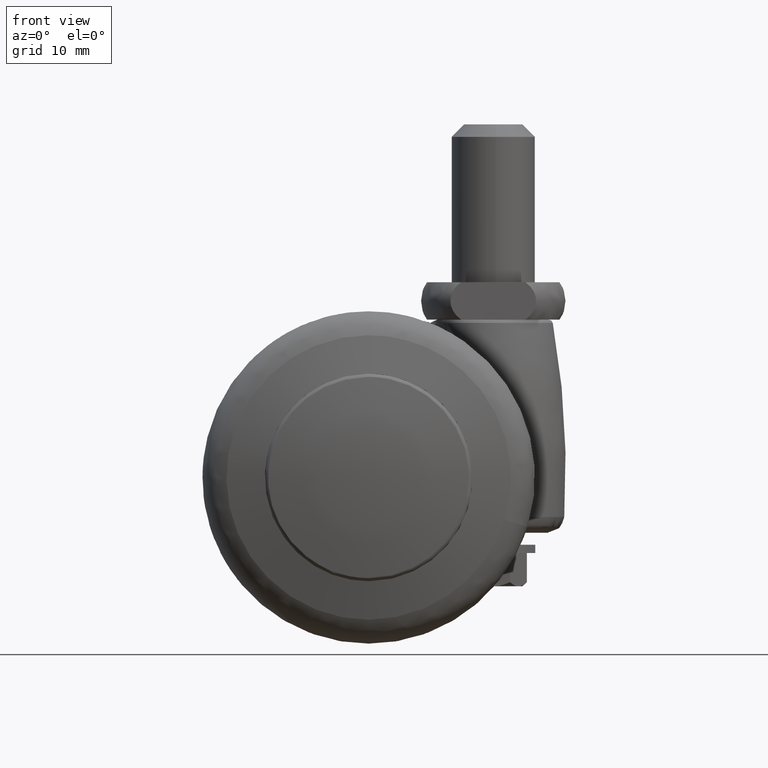
[diagram: clean part render]
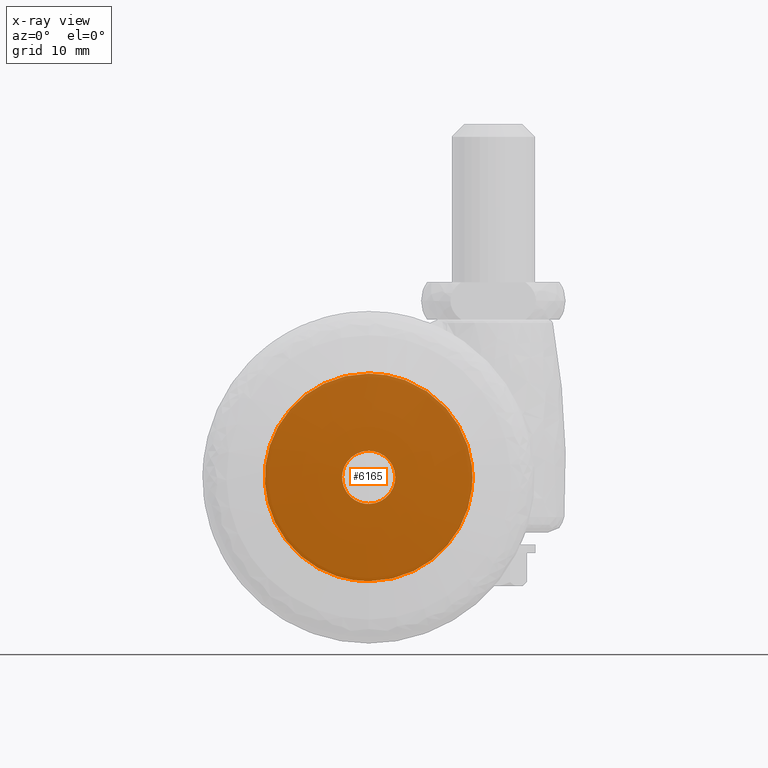
[diagram: x-ray — body ghosted, one internal face saturated and labeled with its STEP entity id]
A machine part, front view, then the same camera in x-ray: the body is ghosted and one INTERNAL B-rep face — a face not visible from any outside direction — is saturated and labeled: STEP entity #6165.
In plain terms, the highlighted face is a freeform B-spline surface patch.
Its self-contained STEP definition (entity closure, byte-faithful):
#3973=CARTESIAN_POINT('',(-3.175460595861651,18.0,-0.397235715632349));
#3974=VERTEX_POINT('',#3973);
#3975=CARTESIAN_POINT('',(0.0,18.0,-3.200210338344024));
#3976=VERTEX_POINT('',#3975);
#3977=CARTESIAN_POINT('',(-3.175460595861651,17.999999999999996,-0.397235715632349));
#3978=CARTESIAN_POINT('',(-2.824821185665963,18.000000000000011,-3.200210338344024));
#3979=CARTESIAN_POINT('',(0.0,18.0,-3.200210338344024));
#3987=(BOUNDED_CURVE()B_SPLINE_CURVE(2,(#3977,#3978,#3979),.UNSPECIFIED.,.F.,.U.)B_SPLINE_CURVE_WITH_KNOTS((3,3),(0.771473928981163,1.0),.UNSPECIFIED.)CURVE()GEOMETRIC_REPRESENTATION_ITEM()RATIONAL_B_SPLINE_CURVE((0.954005430254417,0.732265053906005,1.0))REPRESENTATION_ITEM(''));
#3988=EDGE_CURVE('',#3974,#3976,#3987,.T.);
#3990=CARTESIAN_POINT('',(3.200088484138599,18.0,0.027926749318558));
#3991=VERTEX_POINT('',#3990);
#3992=CARTESIAN_POINT('',(0.0,18.0,-3.200210338344024));
#3993=CARTESIAN_POINT('',(3.200210338344026,18.000000000000007,-3.200210338344024));
#3994=CARTESIAN_POINT('',(3.200210338344026,18.0,1.673897E-015));
#3995=CARTESIAN_POINT('',(3.200210338344026,17.999999999999996,0.013963640604977));
#3996=CARTESIAN_POINT('',(3.200088484138600,18.0,0.027926749318558));
#4004=(BOUNDED_CURVE()B_SPLINE_CURVE(2,(#3992,#3993,#3994,#3995,#3996),.UNSPECIFIED.,.F.,.U.)B_SPLINE_CURVE_WITH_KNOTS((3,2,3),(0.0,0.250000000000000,0.251539894356865),.UNSPECIFIED.)CURVE()GEOMETRIC_REPRESENTATION_ITEM()RATIONAL_B_SPLINE_CURVE((1.0,0.707106781186548,1.0,0.998195901540741,0.996414028049775))REPRESENTATION_ITEM(''));
#4005=EDGE_CURVE('',#3976,#3991,#4004,.T.);
#4076=CARTESIAN_POINT('',(0.0,18.0,3.200210338344027));
#4077=VERTEX_POINT('',#4076);
#4078=CARTESIAN_POINT('',(0.0,18.0,3.200210338344027));
#4079=CARTESIAN_POINT('',(-3.200210338344026,18.000000000000007,3.200210338344028));
#4080=CARTESIAN_POINT('',(-3.200210338344026,18.0,1.673897E-015));
#4081=CARTESIAN_POINT('',(-3.200210338344026,18.0,-0.199388873322108));
#4082=CARTESIAN_POINT('',(-3.175460595861651,18.000000000000004,-0.397235715632349));
#4090=(BOUNDED_CURVE()B_SPLINE_CURVE(2,(#4078,#4079,#4080,#4081,#4082),.UNSPECIFIED.,.F.,.U.)B_SPLINE_CURVE_WITH_KNOTS((3,2,3),(0.500000000000000,0.750000000000000,0.771473928981163),.UNSPECIFIED.)CURVE()GEOMETRIC_REPRESENTATION_ITEM()RATIONAL_B_SPLINE_CURVE((1.0,0.707106781186548,1.0,0.974841727280543,0.954005430254416))REPRESENTATION_ITEM(''));
#4091=EDGE_CURVE('',#4077,#3974,#4090,.T.);
#4125=CARTESIAN_POINT('',(3.200088484138600,18.000000000000004,0.027926749318558));
#4126=CARTESIAN_POINT('',(3.172404384268336,18.000000000000007,3.200210338344027));
#4127=CARTESIAN_POINT('',(0.0,18.0,3.200210338344027));
#4135=(BOUNDED_CURVE()B_SPLINE_CURVE(2,(#4125,#4126,#4127),.UNSPECIFIED.,.F.,.U.)B_SPLINE_CURVE_WITH_KNOTS((3,3),(0.251539894356865,0.500000000000000),.UNSPECIFIED.)CURVE()GEOMETRIC_REPRESENTATION_ITEM()RATIONAL_B_SPLINE_CURVE((0.996414028049774,0.708910879645807,1.0))REPRESENTATION_ITEM(''));
#4136=EDGE_CURVE('',#3991,#4077,#4135,.T.);
#4248=CARTESIAN_POINT('',(12.419649086377900,18.0,1.415032356934192));
#4249=VERTEX_POINT('',#4248);
#4255=CARTESIAN_POINT('',(0.0,18.0,-12.500000000000000));
#4256=VERTEX_POINT('',#4255);
#4257=CARTESIAN_POINT('',(0.0,18.0,-12.500000000000000));
#4258=CARTESIAN_POINT('',(12.499999999999998,18.000000000000007,-12.499999999999998));
#4259=CARTESIAN_POINT('',(12.500000000000000,18.0,1.673897E-015));
#4260=CARTESIAN_POINT('',(12.500000000000005,18.000000000000004,0.709797493550908));
#4261=CARTESIAN_POINT('',(12.419649086377900,18.000000000000004,1.415032356934193));
#4269=(BOUNDED_CURVE()B_SPLINE_CURVE(2,(#4257,#4258,#4259,#4260,#4261),.UNSPECIFIED.,.F.,.U.)B_SPLINE_CURVE_WITH_KNOTS((3,2,3),(0.0,0.250000000000000,0.269614753673379),.UNSPECIFIED.)CURVE()GEOMETRIC_REPRESENTATION_ITEM()RATIONAL_B_SPLINE_CURVE((1.0,0.707106781186547,1.0,0.977019886641484,0.957645767386276))REPRESENTATION_ITEM(''));
#4270=EDGE_CURVE('',#4256,#4249,#4269,.T.);
#4272=CARTESIAN_POINT('',(0.0,18.0,12.500000000000000));
#4273=VERTEX_POINT('',#4272);
#4274=CARTESIAN_POINT('',(0.0,18.0,12.500000000000000));
#4275=CARTESIAN_POINT('',(-12.499999999999998,18.000000000000007,12.500000000000004));
#4276=CARTESIAN_POINT('',(-12.500000000000000,18.0,1.673897E-015));
#4277=CARTESIAN_POINT('',(-12.499999999999998,18.000000000000007,-12.499999999999998));
#4278=CARTESIAN_POINT('',(0.0,18.0,-12.500000000000000));
#4286=(BOUNDED_CURVE()B_SPLINE_CURVE(2,(#4274,#4275,#4276,#4277,#4278),.UNSPECIFIED.,.F.,.U.)B_SPLINE_CURVE_WITH_KNOTS((3,2,3),(0.500000000000000,0.750000000000000,1.0),.UNSPECIFIED.)CURVE()GEOMETRIC_REPRESENTATION_ITEM()RATIONAL_B_SPLINE_CURVE((1.0,0.707106781186547,1.0,0.707106781186547,1.0))REPRESENTATION_ITEM(''));
#4287=EDGE_CURVE('',#4273,#4256,#4286,.T.);
#4289=CARTESIAN_POINT('',(9.285142302942312,18.0,8.368759311517312));
#4290=VERTEX_POINT('',#4289);
#4291=CARTESIAN_POINT('',(9.285142302942314,17.999999999999996,8.368759311517312));
#4292=CARTESIAN_POINT('',(5.561628128162111,18.0,12.500000000000011));
#4293=CARTESIAN_POINT('',(0.0,18.0,12.500000000000000));
#4301=(BOUNDED_CURVE()B_SPLINE_CURVE(2,(#4291,#4292,#4293),.UNSPECIFIED.,.F.,.U.)B_SPLINE_CURVE_WITH_KNOTS((3,3),(0.367172920087527,0.500000000000000),.UNSPECIFIED.)CURVE()GEOMETRIC_REPRESENTATION_ITEM()RATIONAL_B_SPLINE_CURVE((0.854127584832382,0.844383396075376,1.0))REPRESENTATION_ITEM(''));
#4302=EDGE_CURVE('',#4290,#4273,#4301,.T.);
#4344=CARTESIAN_POINT('',(12.419649086377897,18.0,1.415032356934192));
#4345=CARTESIAN_POINT('',(11.966304547585910,17.999999999999996,5.394008568652813));
#4346=CARTESIAN_POINT('',(9.285142302942314,17.999999999999996,8.368759311517312));
#4354=(BOUNDED_CURVE()B_SPLINE_CURVE(2,(#4344,#4345,#4346),.UNSPECIFIED.,.F.,.U.)B_SPLINE_CURVE_WITH_KNOTS((3,3),(0.269614753673379,0.367172920087527),.UNSPECIFIED.)CURVE()GEOMETRIC_REPRESENTATION_ITEM()RATIONAL_B_SPLINE_CURVE((0.957645767386277,0.861284447641933,0.854127584832382))REPRESENTATION_ITEM(''));
#4355=EDGE_CURVE('',#4249,#4290,#4354,.T.);
#6148=CARTESIAN_POINT('',(-13.748749504957321,18.0,-13.748749951545150));
#6149=CARTESIAN_POINT('',(-13.748749504957321,18.0,13.748750622097409));
#6150=CARTESIAN_POINT('',(13.748741234812860,18.0,-13.748749951545150));
#6151=CARTESIAN_POINT('',(13.748741234812860,18.0,13.748750622097409));
#6152=B_SPLINE_SURFACE_WITH_KNOTS('',1,1,((#6148,#6150),(#6149,#6151)),.UNSPECIFIED.,.F.,.F.,.U.,(2,2),(2,2),(0.0,27.497500573642551),(0.0,27.497490739770178),.UNSPECIFIED.);
#6153=ORIENTED_EDGE('',*,*,#4270,.T.);
#6154=ORIENTED_EDGE('',*,*,#4355,.T.);
#6155=ORIENTED_EDGE('',*,*,#4302,.T.);
#6156=ORIENTED_EDGE('',*,*,#4287,.T.);
#6157=EDGE_LOOP('',(#6153,#6154,#6155,#6156));
#6158=FACE_OUTER_BOUND('',#6157,.T.);
#6159=ORIENTED_EDGE('',*,*,#4005,.F.);
#6160=ORIENTED_EDGE('',*,*,#3988,.F.);
#6161=ORIENTED_EDGE('',*,*,#4091,.F.);
#6162=ORIENTED_EDGE('',*,*,#4136,.F.);
#6163=EDGE_LOOP('',(#6159,#6160,#6161,#6162));
#6164=FACE_BOUND('',#6163,.T.);
#6165=ADVANCED_FACE('',(#6158,#6164),#6152,.F.);